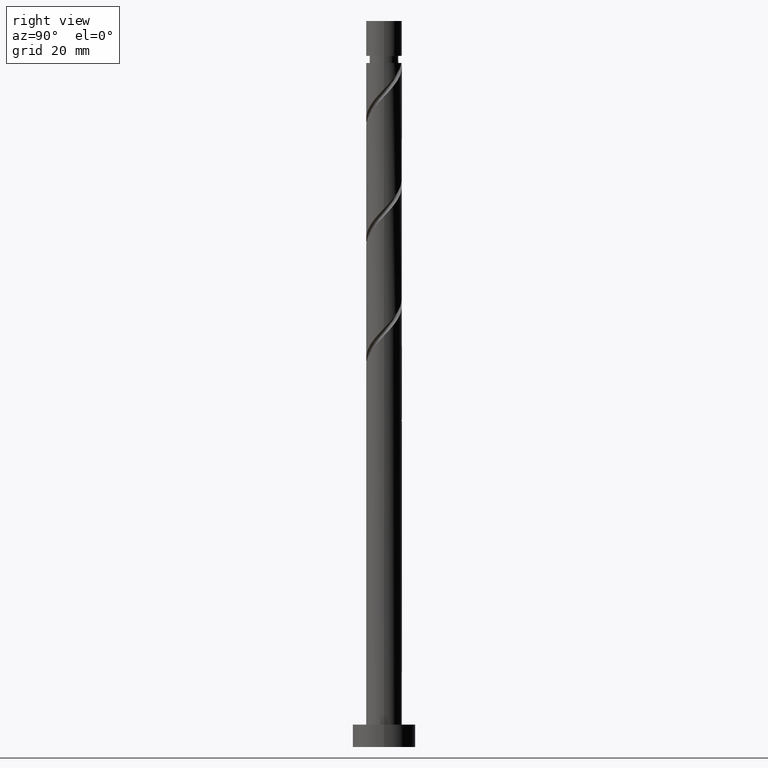
[diagram: clean part render]
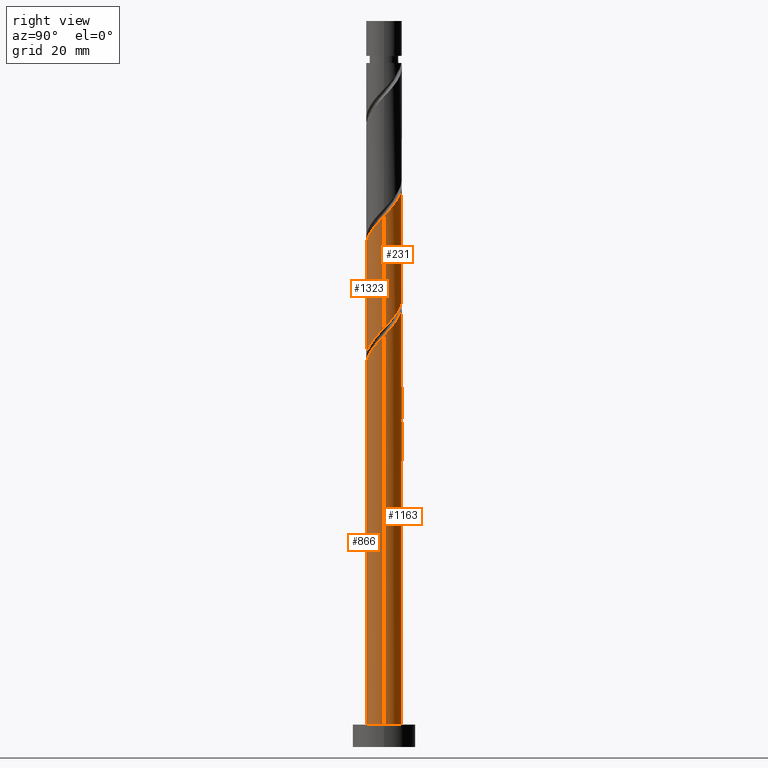
[diagram: same view with one multi-face feature highlighted, each face labeled with its STEP entity id]
A machine part, right view. The highlighted faces form ONE feature: a constant-radius fillet chain: 4 tangent blend faces with common blend radius 4 mm. The faces share edges in the B-rep.
Their STEP definitions:
[1] entity #231 (Cylinder):
#5 = CARTESIAN_POINT ( 'NONE',  ( -0.9136687552802111867, 3.936491403624602814, 101.1082045303811725 ) ) ;
#55 = VERTEX_POINT ( 'NONE', #519 ) ;
#124 = EDGE_CURVE ( 'NONE', #536, #1357, #588, .T. ) ;
#138 = CARTESIAN_POINT ( 'NONE',  ( -3.960310248029102365, 0.8041752946599105556, 105.9566893788660593 ) ) ;
#144 = ORIENTED_EDGE ( 'NONE', *, *, #124, .F. ) ;
#153 = CARTESIAN_POINT ( 'NONE',  ( 0.000000000000000000, 0.000000000000000000, 162.0000000000000000 ) ) ;
#157 = CARTESIAN_POINT ( 'NONE',  ( -4.000000000000000888, 3.769118817281110637E-15, 106.8061438581669051 ) ) ;
#160 = CYLINDRICAL_SURFACE ( 'NONE', #407, 4.000000000000000000 ) ;
#187 = CARTESIAN_POINT ( 'NONE',  ( -4.000000000000005329, 0.4581157095404952972, 131.2879416132605002 ) ) ;
#195 = CARTESIAN_POINT ( 'NONE',  ( -2.376675911072817282, 3.268358422650721629, 127.7748711970478297 ) ) ;
#207 = DIRECTION ( 'NONE',  ( -0.000000000000000000, -0.000000000000000000, -1.000000000000000000 ) ) ;
#231 = ADVANCED_FACE ( 'NONE', ( #1088 ), #160, .T. ) ;
#233 = CARTESIAN_POINT ( 'NONE',  ( -3.573327494404164639, 1.887348876843108147, 104.7445681667448270 ) ) ;
#240 = CARTESIAN_POINT ( 'NONE',  ( -1.449682647155072557, 3.728058505782528620, 101.7142651364417958 ) ) ;
#352 = CARTESIAN_POINT ( 'NONE',  ( 3.766818871216639053, 1.345762085751509574, 119.8960833182599686 ) ) ;
#372 = CARTESIAN_POINT ( 'NONE',  ( 3.960310248029106805, 0.8041752946599101115, 119.2900227121993311 ) ) ;
#377 = CARTESIAN_POINT ( 'NONE',  ( 4.000000000000002665, 0.4581157095404824742, 93.95877047780489022 ) ) ;
#382 = CARTESIAN_POINT ( 'NONE',  ( 3.201206812320808837, 2.466379960577145702, 96.25971968189634254 ) ) ;
#391 = CARTESIAN_POINT ( 'NONE',  ( -3.766818871216632836, 1.345762085751508463, 105.3506287728054076 ) ) ;
#401 = CARTESIAN_POINT ( 'NONE',  ( 2.788941361696811949, 2.867369191613931445, 96.86578028795692319 ) ) ;
#407 = AXIS2_PLACEMENT_3D ( 'NONE', #153, #439, #446 ) ;
#433 = CARTESIAN_POINT ( 'NONE',  ( 0.3406448590276063282, 3.985468740313755642, 124.7445681667448412 ) ) ;
#439 = DIRECTION ( 'NONE',  ( -0.000000000000000000, -0.000000000000000000, -1.000000000000000000 ) ) ;
#446 = DIRECTION ( 'NONE',  ( -1.000000000000000000, 0.000000000000000000, 0.000000000000000000 ) ) ;
#464 = CARTESIAN_POINT ( 'NONE',  ( -4.000000000000005329, -2.752055009443334096E-15, 131.7739015662318138 ) ) ;
#477 = CARTESIAN_POINT ( 'NONE',  ( 4.000000000000005329, 2.557616340297881178E-15, 118.4405682328984568 ) ) ;
#513 = CARTESIAN_POINT ( 'NONE',  ( 3.766394975944543866, 1.464590062224026212, 95.04759846977511017 ) ) ;
#519 = CARTESIAN_POINT ( 'NONE',  ( -4.000000000000005329, -2.752055009443334096E-15, 131.7739015662318138 ) ) ;
#525 = CARTESIAN_POINT ( 'NONE',  ( -3.235091246491823558, 2.352484777181774511, 104.1385075606842037 ) ) ;
#536 = VERTEX_POINT ( 'NONE', #157 ) ;
#588 =( BOUNDED_CURVE ( )  B_SPLINE_CURVE ( 2, ( #1663, #1145, #801, #138, #391, #233, #525, #1282, #1047, #1032, #240, #5, #1653, #1534, #1549, #667, #777, #1423, #401, #382, #1525, #513, #1177, #377, #1038 ),
 .UNSPECIFIED., .F., .T. ) 
 B_SPLINE_CURVE_WITH_KNOTS ( ( 3, 2, 2, 2, 2, 2, 2, 2, 2, 2, 2, 2, 3 ),
 ( 0.6795252162417514397, 0.6818181818181817677, 0.6931818181818182323, 0.7045454545454545858, 0.7159090909090909394, 0.7272727272727272929, 0.7386363636363636465, 0.7500000000000000000, 0.7613636363636363535, 0.7727272727272727071, 0.7840909090909090606, 0.7954545454545454142, 0.8045252162417514397 ),
 .UNSPECIFIED. ) 
 CURVE ( )  GEOMETRIC_REPRESENTATION_ITEM ( )  RATIONAL_B_SPLINE_CURVE ( ( 0.9061101570135570160, 0.9072237824201392353, 0.9090909090909164991, 0.8998376744372188485, 0.9090909090909164991, 0.8998376744372188485, 0.9090909090909164991, 0.8998376744372188485, 0.9090909090909164991, 0.8998376744372188485, 0.9090909090909164991, 0.8998376744372188485, 0.9090909090909164991, 0.8998376744372188485, 0.9090909090909164991, 0.8998376744372188485, 0.9090909090909164991, 0.8998376744372188485, 0.9090909090909164991, 0.8998376744372188485, 0.9090909090909164991, 0.8998376744372188485, 0.9090909090909164991, 0.9017048011079962233, 0.9061101570135570160 ) ) 
 REPRESENTATION_ITEM ( '' )  );
#610 = CARTESIAN_POINT ( 'NONE',  ( -3.483800894132681236, 1.965485011400590398, 129.5930530152296569 ) ) ;
#640 = CARTESIAN_POINT ( 'NONE',  ( 3.993381233129885466, 0.2300137536889530487, 118.6839621061387504 ) ) ;
#667 = CARTESIAN_POINT ( 'NONE',  ( 1.359600862145592615, 3.805553922997103378, 98.68396210613873620 ) ) ;
#734 = CARTESIAN_POINT ( 'NONE',  ( -3.201206812320813277, 2.466379960577148367, 128.9869924091690336 ) ) ;
#740 = CARTESIAN_POINT ( 'NONE',  ( 4.000000000000005329, 2.557616340297881178E-15, 118.4405682328984568 ) ) ;
#742 = LINE ( 'NONE', #1149, #1467 ) ;
#756 = CARTESIAN_POINT ( 'NONE',  ( -3.896423597087605994, 0.9043689247530175557, 130.8051742273508751 ) ) ;
#765 = CARTESIAN_POINT ( 'NONE',  ( 3.573327494404170412, 1.887348876843108370, 120.5021439243205634 ) ) ;
#777 = CARTESIAN_POINT ( 'NONE',  ( 1.868138386609203838, 3.536956172823910727, 98.07790150007816976 ) ) ;
#789 = CARTESIAN_POINT ( 'NONE',  ( -0.7959899496852962386, 3.920000000000005702, 125.9566893788660309 ) ) ;
#801 = CARTESIAN_POINT ( 'NONE',  ( -3.993381233129879693, 0.2300137536889541867, 106.5627499849266542 ) ) ;
#825 = CARTESIAN_POINT ( 'NONE',  ( -1.868138386609205837, 3.536956172823915612, 127.1688105909872490 ) ) ;
#864 = CARTESIAN_POINT ( 'NONE',  ( 4.000000000000005329, 0.1151021060952936159, 118.5626662376166820 ) ) ;
#900 = ORIENTED_EDGE ( 'NONE', *, *, #1110, .T. ) ;
#903 = CARTESIAN_POINT ( 'NONE',  ( 4.000000000000000888, -4.606700776676913527E-15, 93.47281052483359076 ) ) ;
#914 = CARTESIAN_POINT ( 'NONE',  ( 0.9136687552802131851, 3.936491403624606811, 124.1385075606841895 ) ) ;
#1003 = DIRECTION ( 'NONE',  ( -0.000000000000000000, -0.000000000000000000, -1.000000000000000000 ) ) ;
#1023 = EDGE_CURVE ( 'NONE', #55, #536, #1369, .T. ) ;
#1032 = CARTESIAN_POINT ( 'NONE',  ( -1.985696539029934815, 3.519625607940455758, 102.3203257425024191 ) ) ;
#1038 = CARTESIAN_POINT ( 'NONE',  ( 4.000000000000000888, -4.606700776676913527E-15, 93.47281052483359076 ) ) ;
#1047 = CARTESIAN_POINT ( 'NONE',  ( -2.441275768804708868, 3.168623142730448095, 102.9263863485629997 ) ) ;
#1088 = FACE_OUTER_BOUND ( 'NONE', #1454, .T. ) ;
#1095 = VECTOR ( 'NONE', #207, 1000.000000000000000 ) ;
#1110 = EDGE_CURVE ( 'NONE', #1336, #1357, #742, .T. ) ;
#1131 = CARTESIAN_POINT ( 'NONE',  ( 3.235091246491828887, 2.352484777181775399, 121.1082045303812009 ) ) ;
#1145 = CARTESIAN_POINT ( 'NONE',  ( -4.000000000000000000, 0.1151021060952975572, 106.6840458534486942 ) ) ;
#1149 = CARTESIAN_POINT ( 'NONE',  ( 4.000000000000000000, 4.898587196589412829E-16, 162.0000000000000000 ) ) ;
#1152 = CARTESIAN_POINT ( 'NONE',  ( 2.441275768804711976, 3.168623142730452091, 122.3203257425024049 ) ) ;
#1177 = CARTESIAN_POINT ( 'NONE',  ( 3.896423597087600665, 0.9043689247530143360, 94.44153786371452952 ) ) ;
#1221 = CARTESIAN_POINT ( 'NONE',  ( -2.788941361696814614, 2.867369191613936330, 128.3809318031084672 ) ) ;
#1231 = CARTESIAN_POINT ( 'NONE',  ( -3.766394975944548307, 1.464590062224031541, 130.1991136212902518 ) ) ;
#1260 = ORIENTED_EDGE ( 'NONE', *, *, #1638, .F. ) ;
#1282 = CARTESIAN_POINT ( 'NONE',  ( -2.896854998579482920, 2.817620677520439987, 103.5324469546236230 ) ) ;
#1331 = CARTESIAN_POINT ( 'NONE',  ( -1.359600862145593503, 3.805553922997108707, 126.5627499849266400 ) ) ;
#1336 = VERTEX_POINT ( 'NONE', #740 ) ;
#1357 = VERTEX_POINT ( 'NONE', #903 ) ;
#1366 = ORIENTED_EDGE ( 'NONE', *, *, #1023, .F. ) ;
#1369 = LINE ( 'NONE', #1619, #1095 ) ;
#1420 = CARTESIAN_POINT ( 'NONE',  ( -0.2323790372250002234, 4.034446077002900921, 125.3506287728054218 ) ) ;
#1423 = CARTESIAN_POINT ( 'NONE',  ( 2.376675911072815062, 3.268358422650716744, 97.47184089401756069 ) ) ;
#1454 = EDGE_LOOP ( 'NONE', ( #1260, #900, #144, #1366 ) ) ;
#1467 = VECTOR ( 'NONE', #1003, 1000.000000000000000 ) ;
#1525 = CARTESIAN_POINT ( 'NONE',  ( 3.483800894132676351, 1.965485011400587290, 95.65365907583571925 ) ) ;
#1527 = CARTESIAN_POINT ( 'NONE',  ( 1.449682647155074333, 3.728058505782534393, 123.5324469546236230 ) ) ;
#1532 =( BOUNDED_CURVE ( )  B_SPLINE_CURVE ( 2, ( #477, #864, #640, #372, #352, #765, #1131, #1632, #1152, #1657, #1527, #914, #433, #1420, #789, #1331, #825, #195, #1221, #734, #610, #1231, #756, #187, #464 ),
 .UNSPECIFIED., .F., .T. ) 
 B_SPLINE_CURVE_WITH_KNOTS ( ( 3, 2, 2, 2, 2, 2, 2, 2, 2, 2, 2, 2, 3 ),
 ( 0.4295252162417513841, 0.4318181818181817677, 0.4431818181818182323, 0.4545454545454545858, 0.4659090909090909394, 0.4772727272727272929, 0.4886363636363636465, 0.5000000000000000000, 0.5113636363636363535, 0.5227272727272727071, 0.5340909090909091717, 0.5454545454545454142, 0.5545252162417513286 ),
 .UNSPECIFIED. ) 
 CURVE ( )  GEOMETRIC_REPRESENTATION_ITEM ( )  RATIONAL_B_SPLINE_CURVE ( ( 0.9061101570135623451, 0.9072237824201445644, 0.9090909090909219392, 0.8998376744372241776, 0.9090909090909219392, 0.8998376744372241776, 0.9090909090909219392, 0.8998376744372241776, 0.9090909090909219392, 0.8998376744372241776, 0.9090909090909219392, 0.8998376744372241776, 0.9090909090909219392, 0.8998376744372241776, 0.9090909090909219392, 0.8998376744372241776, 0.9090909090909219392, 0.8998376744372241776, 0.9090909090909219392, 0.8998376744372241776, 0.9090909090909219392, 0.8998376744372241776, 0.9090909090909219392, 0.9017048011080017744, 0.9061101570135622341 ) ) 
 REPRESENTATION_ITEM ( '' )  );
#1534 = CARTESIAN_POINT ( 'NONE',  ( 0.2323790372250010838, 4.034446077002895592, 99.89608331825995435 ) ) ;
#1549 = CARTESIAN_POINT ( 'NONE',  ( 0.7959899496852975709, 3.919999999999999929, 99.29002271219934528 ) ) ;
#1619 = CARTESIAN_POINT ( 'NONE',  ( -4.000000000000000000, 0.000000000000000000, 162.0000000000000000 ) ) ;
#1632 = CARTESIAN_POINT ( 'NONE',  ( 2.896854998579489138, 2.817620677520440875, 121.7142651364417816 ) ) ;
#1638 = EDGE_CURVE ( 'NONE', #1336, #55, #1532, .T. ) ;
#1653 = CARTESIAN_POINT ( 'NONE',  ( -0.3406448590276049404, 3.985468740313750313, 100.5021439243205492 ) ) ;
#1657 = CARTESIAN_POINT ( 'NONE',  ( 1.985696539029936369, 3.519625607940460643, 122.9263863485630139 ) ) ;
#1663 = CARTESIAN_POINT ( 'NONE',  ( -4.000000000000000888, 3.769118817281110637E-15, 106.8061438581668909 ) ) ;
[2] entity #1323 (Cylinder):
#6 = CARTESIAN_POINT ( 'NONE',  ( -2.376675911072814618, -3.268358422650716744, 84.13850756068420367 ) ) ;
#8 = VERTEX_POINT ( 'NONE', #98 ) ;
#13 = CARTESIAN_POINT ( 'NONE',  ( 1.868138386609204726, -3.536956172823916056, 113.8354772576539204 ) ) ;
#23 = CARTESIAN_POINT ( 'NONE',  ( -3.766394975944543422, -1.464590062224028433, 81.71426513644179579 ) ) ;
#29 = LINE ( 'NONE', #1197, #1196 ) ;
#37 = EDGE_CURVE ( 'NONE', #1378, #1336, #530, .T. ) ;
#44 = CARTESIAN_POINT ( 'NONE',  ( -3.896423597087600665, -0.9043689247530153352, 81.10820453038115829 ) ) ;
#89 = CARTESIAN_POINT ( 'NONE',  ( 1.985696539029934149, -3.519625607940456202, 88.98699240916909048 ) ) ;
#98 = CARTESIAN_POINT ( 'NONE',  ( -4.000000000000000888, 3.769118817281110637E-15, 80.13947719150026217 ) ) ;
#191 = CARTESIAN_POINT ( 'NONE',  ( 2.441275768804707980, -3.168623142730448095, 89.59305301522967113 ) ) ;
#217 = DIRECTION ( 'NONE',  ( -1.000000000000000000, 0.000000000000000000, 0.000000000000000000 ) ) ;
#357 = CARTESIAN_POINT ( 'NONE',  ( 0.2323790372250007230, -4.034446077002900921, 112.0172954394720648 ) ) ;
#368 = CARTESIAN_POINT ( 'NONE',  ( -1.359600862145591949, -3.805553922997103822, 85.35062877280540761 ) ) ;
#402 = CARTESIAN_POINT ( 'NONE',  ( -4.000000000000001776, -0.4581157095404894686, 80.62543714447157583 ) ) ;
#450 = CARTESIAN_POINT ( 'NONE',  ( 3.993381233129879693, -0.2300137536889547418, 93.22941665159331137 ) ) ;
#468 = EDGE_LOOP ( 'NONE', ( #1603, #1173, #1263, #1167 ) ) ;
#478 = CARTESIAN_POINT ( 'NONE',  ( -3.573327494404169524, -1.887348876843109702, 107.1688105909872348 ) ) ;
#491 = CARTESIAN_POINT ( 'NONE',  ( 0.000000000000000000, 0.000000000000000000, 162.0000000000000000 ) ) ;
#494 = FACE_OUTER_BOUND ( 'NONE', #468, .T. ) ;
#501 = CYLINDRICAL_SURFACE ( 'NONE', #1072, 4.000000000000000000 ) ;
#507 = CARTESIAN_POINT ( 'NONE',  ( -3.993381233129885466, -0.2300137536889534373, 105.3506287728054218 ) ) ;
#508 = CARTESIAN_POINT ( 'NONE',  ( -0.2323790372250022218, -4.034446077002896480, 86.56274998492665418 ) ) ;
#530 =( BOUNDED_CURVE ( )  B_SPLINE_CURVE ( 2, ( #1344, #1126, #507, #1503, #1224, #478, #981, #850, #991, #1137, #1011, #1510, #873, #357, #1518, #719, #13, #1159, #1165, #924, #792, #1289, #1027, #1267, #1396 ),
 .UNSPECIFIED., .F., .T. ) 
 B_SPLINE_CURVE_WITH_KNOTS ( ( 3, 2, 2, 2, 2, 2, 2, 2, 2, 2, 2, 2, 3 ),
 ( 0.3045252162417513841, 0.3068181818181817677, 0.3181818181818182323, 0.3295454545454545858, 0.3409090909090909394, 0.3522727272727272929, 0.3636363636363636465, 0.3750000000000000000, 0.3863636363636363535, 0.3977272727272727071, 0.4090909090909090606, 0.4204545454545454142, 0.4295252162417513841 ),
 .UNSPECIFIED. ) 
 CURVE ( )  GEOMETRIC_REPRESENTATION_ITEM ( )  RATIONAL_B_SPLINE_CURVE ( ( 0.9061101570135623451, 0.9072237824201445644, 0.9090909090909219392, 0.8998376744372241776, 0.9090909090909219392, 0.8998376744372241776, 0.9090909090909219392, 0.8998376744372241776, 0.9090909090909219392, 0.8998376744372241776, 0.9090909090909219392, 0.8998376744372241776, 0.9090909090909219392, 0.8998376744372241776, 0.9090909090909219392, 0.8998376744372241776, 0.9090909090909219392, 0.8998376744372241776, 0.9090909090909219392, 0.8998376744372241776, 0.9090909090909219392, 0.8998376744372241776, 0.9090909090909219392, 0.9017048011080015524, 0.9061101570135623451 ) ) 
 REPRESENTATION_ITEM ( '' )  );
#571 = EDGE_CURVE ( 'NONE', #1378, #8, #29, .T. ) ;
#580 = CARTESIAN_POINT ( 'NONE',  ( 4.000000000000000888, -4.606700776676913527E-15, 93.47281052483359076 ) ) ;
#711 = CARTESIAN_POINT ( 'NONE',  ( 3.573327494404164639, -1.887348876843107703, 91.41123483341148415 ) ) ;
#719 = CARTESIAN_POINT ( 'NONE',  ( 1.359600862145592615, -3.805553922997109595, 113.2294166515932972 ) ) ;
#740 = CARTESIAN_POINT ( 'NONE',  ( 4.000000000000005329, 2.557616340297881178E-15, 118.4405682328984568 ) ) ;
#742 = LINE ( 'NONE', #1149, #1467 ) ;
#792 = CARTESIAN_POINT ( 'NONE',  ( 3.483800894132681236, -1.965485011400590842, 116.2597196818963283 ) ) ;
#817 = CARTESIAN_POINT ( 'NONE',  ( -2.788941361696812393, -2.867369191613931001, 83.53244695462356617 ) ) ;
#850 = CARTESIAN_POINT ( 'NONE',  ( -2.896854998579486917, -2.817620677520442651, 108.3809318031084388 ) ) ;
#873 = CARTESIAN_POINT ( 'NONE',  ( -0.3406448590276058841, -3.985468740313755642, 111.4112348334114841 ) ) ;
#886 = CARTESIAN_POINT ( 'NONE',  ( 0.3406448590276037192, -3.985468740313750313, 87.16881059098724904 ) ) ;
#903 = CARTESIAN_POINT ( 'NONE',  ( 4.000000000000000888, -4.606700776676913527E-15, 93.47281052483359076 ) ) ;
#924 = CARTESIAN_POINT ( 'NONE',  ( 3.201206812320812833, -2.466379960577149699, 115.6536590758357335 ) ) ;
#962 = CARTESIAN_POINT ( 'NONE',  ( 3.960310248029102365, -0.8041752946599112217, 92.62335604553268809 ) ) ;
#981 = CARTESIAN_POINT ( 'NONE',  ( -3.235091246491827999, -2.352484777181776288, 107.7748711970478723 ) ) ;
#991 = CARTESIAN_POINT ( 'NONE',  ( -2.441275768804712420, -3.168623142730450759, 108.9869924091690478 ) ) ;
#1003 = DIRECTION ( 'NONE',  ( -0.000000000000000000, -0.000000000000000000, -1.000000000000000000 ) ) ;
#1011 = CARTESIAN_POINT ( 'NONE',  ( -1.449682647155075665, -3.728058505782533505, 110.1991136212902660 ) ) ;
#1027 = CARTESIAN_POINT ( 'NONE',  ( 3.896423597087605994, -0.9043689247530174447, 117.4718408940175465 ) ) ;
#1039 = EDGE_CURVE ( 'NONE', #1357, #8, #1170, .T. ) ;
#1072 = AXIS2_PLACEMENT_3D ( 'NONE', #491, #1647, #217 ) ;
#1085 = CARTESIAN_POINT ( 'NONE',  ( -4.000000000000005329, -2.752055009443334096E-15, 105.1072348995651424 ) ) ;
#1110 = EDGE_CURVE ( 'NONE', #1336, #1357, #742, .T. ) ;
#1126 = CARTESIAN_POINT ( 'NONE',  ( -4.000000000000005329, -0.1151021060952939212, 105.2293329042833534 ) ) ;
#1137 = CARTESIAN_POINT ( 'NONE',  ( -1.985696539029938146, -3.519625607940459311, 109.5930530152296569 ) ) ;
#1149 = CARTESIAN_POINT ( 'NONE',  ( 4.000000000000000000, 4.898587196589412829E-16, 162.0000000000000000 ) ) ;
#1159 = CARTESIAN_POINT ( 'NONE',  ( 2.376675911072817282, -3.268358422650720740, 114.4415378637145437 ) ) ;
#1165 = CARTESIAN_POINT ( 'NONE',  ( 2.788941361696814614, -2.867369191613936330, 115.0475984697751386 ) ) ;
#1167 = ORIENTED_EDGE ( 'NONE', *, *, #1039, .F. ) ;
#1170 =( BOUNDED_CURVE ( )  B_SPLINE_CURVE ( 2, ( #580, #1597, #450, #962, #1338, #711, #1347, #1605, #191, #89, #1403, #1646, #886, #508, #1519, #368, #1450, #6, #817, #1178, #1311, #23, #44, #402, #1297 ),
 .UNSPECIFIED., .F., .T. ) 
 B_SPLINE_CURVE_WITH_KNOTS ( ( 3, 2, 2, 2, 2, 2, 2, 2, 2, 2, 2, 2, 3 ),
 ( 0.8045252162417514397, 0.8068181818181817677, 0.8181818181818182323, 0.8295454545454545858, 0.8409090909090909394, 0.8522727272727272929, 0.8636363636363636465, 0.8750000000000000000, 0.8863636363636363535, 0.8977272727272727071, 0.9090909090909090606, 0.9204545454545454142, 0.9295252162417513286 ),
 .UNSPECIFIED. ) 
 CURVE ( )  GEOMETRIC_REPRESENTATION_ITEM ( )  RATIONAL_B_SPLINE_CURVE ( ( 0.9061101570135570160, 0.9072237824201392353, 0.9090909090909164991, 0.8998376744372188485, 0.9090909090909164991, 0.8998376744372188485, 0.9090909090909164991, 0.8998376744372188485, 0.9090909090909164991, 0.8998376744372188485, 0.9090909090909164991, 0.8998376744372188485, 0.9090909090909164991, 0.8998376744372188485, 0.9090909090909164991, 0.8998376744372188485, 0.9090909090909164991, 0.8998376744372188485, 0.9090909090909164991, 0.8998376744372188485, 0.9090909090909164991, 0.8998376744372188485, 0.9090909090909164991, 0.9017048011079962233, 0.9061101570135567940 ) ) 
 REPRESENTATION_ITEM ( '' )  );
#1173 = ORIENTED_EDGE ( 'NONE', *, *, #37, .F. ) ;
#1178 = CARTESIAN_POINT ( 'NONE',  ( -3.201206812320810169, -2.466379960577145702, 82.92638634856298552 ) ) ;
#1196 = VECTOR ( 'NONE', #1445, 1000.000000000000000 ) ;
#1197 = CARTESIAN_POINT ( 'NONE',  ( -4.000000000000000000, 0.000000000000000000, 162.0000000000000000 ) ) ;
#1224 = CARTESIAN_POINT ( 'NONE',  ( -3.766818871216639053, -1.345762085751509796, 106.5627499849266684 ) ) ;
#1263 = ORIENTED_EDGE ( 'NONE', *, *, #571, .T. ) ;
#1267 = CARTESIAN_POINT ( 'NONE',  ( 4.000000000000007994, -0.4581157095404881918, 117.9546082799271858 ) ) ;
#1289 = CARTESIAN_POINT ( 'NONE',  ( 3.766394975944548751, -1.464590062224029987, 116.8657802879569516 ) ) ;
#1297 = CARTESIAN_POINT ( 'NONE',  ( -4.000000000000000888, 3.769118817281110637E-15, 80.13947719150026217 ) ) ;
#1311 = CARTESIAN_POINT ( 'NONE',  ( -3.483800894132676351, -1.965485011400587068, 82.32032574250239065 ) ) ;
#1323 = ADVANCED_FACE ( 'NONE', ( #494 ), #501, .T. ) ;
#1336 = VERTEX_POINT ( 'NONE', #740 ) ;
#1338 = CARTESIAN_POINT ( 'NONE',  ( 3.766818871216632836, -1.345762085751509129, 92.01729543947207901 ) ) ;
#1344 = CARTESIAN_POINT ( 'NONE',  ( -4.000000000000005329, -2.752055009443334096E-15, 105.1072348995651424 ) ) ;
#1347 = CARTESIAN_POINT ( 'NONE',  ( 3.235091246491824002, -2.352484777181773179, 90.80517422735083244 ) ) ;
#1357 = VERTEX_POINT ( 'NONE', #903 ) ;
#1378 = VERTEX_POINT ( 'NONE', #1085 ) ;
#1396 = CARTESIAN_POINT ( 'NONE',  ( 4.000000000000005329, 2.557616340297881178E-15, 118.4405682328984568 ) ) ;
#1403 = CARTESIAN_POINT ( 'NONE',  ( 1.449682647155072557, -3.728058505782528620, 88.38093180310846719 ) ) ;
#1445 = DIRECTION ( 'NONE',  ( -0.000000000000000000, -0.000000000000000000, -1.000000000000000000 ) ) ;
#1450 = CARTESIAN_POINT ( 'NONE',  ( -1.868138386609203616, -3.536956172823910727, 84.74456816674485538 ) ) ;
#1467 = VECTOR ( 'NONE', #1003, 1000.000000000000000 ) ;
#1503 = CARTESIAN_POINT ( 'NONE',  ( -3.960310248029106805, -0.8041752946599106666, 105.9566893788660167 ) ) ;
#1510 = CARTESIAN_POINT ( 'NONE',  ( -0.9136687552802127410, -3.936491403624608143, 110.8051742273508751 ) ) ;
#1518 = CARTESIAN_POINT ( 'NONE',  ( 0.7959899496852965717, -3.920000000000005702, 112.6233560455326881 ) ) ;
#1519 = CARTESIAN_POINT ( 'NONE',  ( -0.7959899496852971268, -3.919999999999999929, 85.95668937886603089 ) ) ;
#1597 = CARTESIAN_POINT ( 'NONE',  ( 4.000000000000000000, -0.1151021060952983205, 93.35071252011537979 ) ) ;
#1603 = ORIENTED_EDGE ( 'NONE', *, *, #1110, .F. ) ;
#1605 = CARTESIAN_POINT ( 'NONE',  ( 2.896854998579484253, -2.817620677520439987, 90.19911362129029442 ) ) ;
#1646 = CARTESIAN_POINT ( 'NONE',  ( 0.9136687552802118528, -3.936491403624601926, 87.77487119704787233 ) ) ;
#1647 = DIRECTION ( 'NONE',  ( -0.000000000000000000, -0.000000000000000000, -1.000000000000000000 ) ) ;
[3] entity #1163 (Cylinder):
#8 = VERTEX_POINT ( 'NONE', #98 ) ;
#11 = CARTESIAN_POINT ( 'NONE',  ( -4.000000000000000888, 3.769118817281110637E-15, 80.13947719150026217 ) ) ;
#20 = CARTESIAN_POINT ( 'NONE',  ( -4.000000000000000888, 0.1151021060952919922, 80.01737918678205119 ) ) ;
#29 = LINE ( 'NONE', #1197, #1196 ) ;
#66 = CARTESIAN_POINT ( 'NONE',  ( 3.573327494404170412, 1.887348876843108370, 93.83547725765392045 ) ) ;
#76 = CARTESIAN_POINT ( 'NONE',  ( 0.000000000000000000, 0.000000000000000000, 72.62335604553271651 ) ) ;
#92 = DIRECTION ( 'NONE',  ( -1.000000000000000000, 0.000000000000000000, 0.000000000000000000 ) ) ;
#98 = CARTESIAN_POINT ( 'NONE',  ( -4.000000000000000888, 3.769118817281110637E-15, 80.13947719150026217 ) ) ;
#125 = DIRECTION ( 'NONE',  ( 1.000000000000000000, 0.000000000000000000, 0.000000000000000000 ) ) ;
#147 = LINE ( 'NONE', #1303, #1478 ) ;
#189 = CARTESIAN_POINT ( 'NONE',  ( -0.7959899496852962386, 3.920000000000005702, 99.29002271219934528 ) ) ;
#190 = CIRCLE ( 'NONE', #1443, 4.000000000000000000 ) ;
#234 = VERTEX_POINT ( 'NONE', #561 ) ;
#251 = CARTESIAN_POINT ( 'NONE',  ( 3.993381233129885466, 0.2300137536889530487, 92.01729543947209322 ) ) ;
#259 = CARTESIAN_POINT ( 'NONE',  ( -1.985696539029934815, 3.519625607940455758, 75.65365907583573346 ) ) ;
#281 =( BOUNDED_CURVE ( )  B_SPLINE_CURVE ( 2, ( #1501, #1233, #1223, #1614, #594, #1485, #1103, #1611, #456, #1384, #465 ),
 .UNSPECIFIED., .F., .T. ) 
 B_SPLINE_CURVE_WITH_KNOTS ( ( 3, 2, 2, 2, 2, 3 ),
 ( 0.000000000000000000, 0.01136363636363635354, 0.02272727272727270709, 0.03409090909090906063, 0.04545454545454541417, 0.05452521624175127313 ),
 .UNSPECIFIED. ) 
 CURVE ( )  GEOMETRIC_REPRESENTATION_ITEM ( )  RATIONAL_B_SPLINE_CURVE ( ( 0.9090909090909219392, 0.8998376744372241776, 0.9090909090909219392, 0.8998376744372241776, 0.9090909090909219392, 0.8998376744372241776, 0.9090909090909219392, 0.8998376744372241776, 0.9090909090909219392, 0.9017048011080016634, 0.9061101570135622341 ) ) 
 REPRESENTATION_ITEM ( '' )  );
#294 = EDGE_CURVE ( 'NONE', #234, #436, #147, .T. ) ;
#296 = CARTESIAN_POINT ( 'NONE',  ( 0.3406448590276063282, 3.985468740313755642, 98.07790150007818397 ) ) ;
#302 = CIRCLE ( 'NONE', #360, 4.000000000000000000 ) ;
#305 = CARTESIAN_POINT ( 'NONE',  ( -0.2323790372250002234, 4.034446077002900921, 98.68396210613873620 ) ) ;
#318 = CARTESIAN_POINT ( 'NONE',  ( -4.000000000000000000, 0.000000000000000000, 5.000000000000000000 ) ) ;
#339 = CARTESIAN_POINT ( 'NONE',  ( -3.896423597087605994, 0.9043689247530175557, 104.1385075606842321 ) ) ;
#350 = VERTEX_POINT ( 'NONE', #1184 ) ;
#360 = AXIS2_PLACEMENT_3D ( 'NONE', #1009, #1387, #125 ) ;
#408 = ORIENTED_EDGE ( 'NONE', *, *, #500, .F. ) ;
#422 = CARTESIAN_POINT ( 'NONE',  ( 0.7959899496852974599, 3.919999999999999929, 72.62335604553270230 ) ) ;
#436 = VERTEX_POINT ( 'NONE', #318 ) ;
#443 = CARTESIAN_POINT ( 'NONE',  ( -1.868138386609205837, 3.536956172823915612, 100.5021439243205919 ) ) ;
#456 = CARTESIAN_POINT ( 'NONE',  ( -3.896423597087605994, 0.9043689247530175557, 77.47184089401754647 ) ) ;
#459 = CARTESIAN_POINT ( 'NONE',  ( 2.441275768804711976, 3.168623142730452091, 95.65365907583571925 ) ) ;
#465 = CARTESIAN_POINT ( 'NONE',  ( -4.000000000000005329, -2.752055009443334096E-15, 78.44056823289847102 ) ) ;
#470 = CARTESIAN_POINT ( 'NONE',  ( -1.359600862145593503, 3.805553922997108707, 99.89608331825996856 ) ) ;
#479 = CARTESIAN_POINT ( 'NONE',  ( -3.766394975944548307, 1.464590062224031541, 103.5324469546235946 ) ) ;
#498 = ORIENTED_EDGE ( 'NONE', *, *, #1274, .T. ) ;
#500 = EDGE_CURVE ( 'NONE', #1090, #234, #281, .T. ) ;
#506 = CARTESIAN_POINT ( 'NONE',  ( -3.993381233129879693, 0.2300137536889541867, 79.89608331825998278 ) ) ;
#548 = ORIENTED_EDGE ( 'NONE', *, *, #1204, .T. ) ;
#561 = CARTESIAN_POINT ( 'NONE',  ( -4.000000000000005329, -2.752055009443334096E-15, 78.44056823289847102 ) ) ;
#563 = CARTESIAN_POINT ( 'NONE',  ( 0.9136687552802131851, 3.936491403624606811, 97.47184089401756069 ) ) ;
#571 = EDGE_CURVE ( 'NONE', #1378, #8, #29, .T. ) ;
#574 = CARTESIAN_POINT ( 'NONE',  ( 3.766818871216639053, 1.345762085751509574, 93.22941665159331137 ) ) ;
#594 = CARTESIAN_POINT ( 'NONE',  ( -2.788941361696814614, 2.867369191613936330, 75.04759846977512439 ) ) ;
#645 = CARTESIAN_POINT ( 'NONE',  ( -3.573327494404164639, 1.887348876843108147, 78.07790150007815555 ) ) ;
#655 = ORIENTED_EDGE ( 'NONE', *, *, #294, .F. ) ;
#660 = CARTESIAN_POINT ( 'NONE',  ( -3.960310248029102365, 0.8041752946599105556, 79.29002271219937370 ) ) ;
#668 = EDGE_CURVE ( 'NONE', #1090, #1566, #190, .T. ) ;
#671 = ORIENTED_EDGE ( 'NONE', *, *, #1607, .F. ) ;
#695 = CARTESIAN_POINT ( 'NONE',  ( -2.376675911072817282, 3.268358422650721629, 101.1082045303811867 ) ) ;
#699 = CARTESIAN_POINT ( 'NONE',  ( -0.9136687552802111867, 3.936491403624602814, 74.44153786371451531 ) ) ;
#810 = CARTESIAN_POINT ( 'NONE',  ( -0.7959899496852960166, 3.920000000000004370, 72.62335604553270230 ) ) ;
#828 = ORIENTED_EDGE ( 'NONE', *, *, #571, .F. ) ;
#829 = VECTOR ( 'NONE', #987, 1000.000000000000000 ) ;
#831 = CARTESIAN_POINT ( 'NONE',  ( -1.449682647155072557, 3.728058505782528620, 75.04759846977511017 ) ) ;
#849 = CARTESIAN_POINT ( 'NONE',  ( 4.000000000000000000, 4.898587196589412829E-16, 162.0000000000000000 ) ) ;
#852 = CARTESIAN_POINT ( 'NONE',  ( 1.985696539029936369, 3.519625607940460643, 96.25971968189635675 ) ) ;
#865 = DIRECTION ( 'NONE',  ( -1.000000000000000000, 0.000000000000000000, 0.000000000000000000 ) ) ;
#885 = CYLINDRICAL_SURFACE ( 'NONE', #904, 4.000000000000000000 ) ;
#888 =( BOUNDED_CURVE ( )  B_SPLINE_CURVE ( 2, ( #11, #20, #506, #660, #1412, #645, #1281, #1026, #1541, #259, #831, #699, #939, #1318, #1456 ),
 .UNSPECIFIED., .F., .T. ) 
 B_SPLINE_CURVE_WITH_KNOTS ( ( 3, 2, 2, 2, 2, 2, 2, 3 ),
 ( 0.9295252162417513286, 0.9318181818181817677, 0.9431818181818182323, 0.9545454545454545858, 0.9659090909090909394, 0.9772727272727272929, 0.9886363636363636465, 1.000000000000000000 ),
 .UNSPECIFIED. ) 
 CURVE ( )  GEOMETRIC_REPRESENTATION_ITEM ( )  RATIONAL_B_SPLINE_CURVE ( ( 0.9061101570135567940, 0.9072237824201390133, 0.9090909090909164991, 0.8998376744372188485, 0.9090909090909164991, 0.8998376744372188485, 0.9090909090909164991, 0.8998376744372188485, 0.9090909090909164991, 0.8998376744372188485, 0.9090909090909164991, 0.8998376744372188485, 0.9090909090909164991, 0.8998376744372188485, 0.9090909090909164991 ) ) 
 REPRESENTATION_ITEM ( '' )  );
#898 = DIRECTION ( 'NONE',  ( -0.000000000000000000, -0.000000000000000000, -1.000000000000000000 ) ) ;
#904 = AXIS2_PLACEMENT_3D ( 'NONE', #1526, #898, #865 ) ;
#939 = CARTESIAN_POINT ( 'NONE',  ( -0.3406448590276049404, 3.985468740313750313, 73.83547725765390624 ) ) ;
#953 = DIRECTION ( 'NONE',  ( -0.000000000000000000, -0.000000000000000000, -1.000000000000000000 ) ) ;
#973 = CARTESIAN_POINT ( 'NONE',  ( 2.896854998579489138, 2.817620677520440875, 95.04759846977512439 ) ) ;
#987 = DIRECTION ( 'NONE',  ( -0.000000000000000000, -0.000000000000000000, -1.000000000000000000 ) ) ;
#1009 = CARTESIAN_POINT ( 'NONE',  ( 0.000000000000000000, 0.000000000000000000, 5.000000000000000000 ) ) ;
#1026 = CARTESIAN_POINT ( 'NONE',  ( -2.896854998579482920, 2.817620677520439987, 76.86578028795693740 ) ) ;
#1056 = LINE ( 'NONE', #849, #829 ) ;
#1061 = CARTESIAN_POINT ( 'NONE',  ( 3.960310248029106805, 0.8041752946599101115, 92.62335604553267387 ) ) ;
#1084 = CARTESIAN_POINT ( 'NONE',  ( -2.788941361696814614, 2.867369191613936330, 101.7142651364417674 ) ) ;
#1085 = CARTESIAN_POINT ( 'NONE',  ( -4.000000000000005329, -2.752055009443334096E-15, 105.1072348995651424 ) ) ;
#1090 = VERTEX_POINT ( 'NONE', #810 ) ;
#1103 = CARTESIAN_POINT ( 'NONE',  ( -3.483800894132681236, 1.965485011400590398, 76.25971968189631411 ) ) ;
#1104 = ORIENTED_EDGE ( 'NONE', *, *, #1138, .F. ) ;
#1120 = CARTESIAN_POINT ( 'NONE',  ( -4.000000000000007994, 0.4581157095404883028, 104.6212749465938714 ) ) ;
#1128 = CARTESIAN_POINT ( 'NONE',  ( -3.483800894132681236, 1.965485011400590398, 102.9263863485629997 ) ) ;
#1130 = CARTESIAN_POINT ( 'NONE',  ( 4.000000000000005329, 2.557616340297881178E-15, 91.77390156623179962 ) ) ;
#1138 = EDGE_CURVE ( 'NONE', #350, #1378, #1330, .T. ) ;
#1147 = FACE_OUTER_BOUND ( 'NONE', #1190, .T. ) ;
#1163 = ADVANCED_FACE ( 'NONE', ( #1147 ), #885, .T. ) ;
#1180 = ORIENTED_EDGE ( 'NONE', *, *, #668, .T. ) ;
#1184 = CARTESIAN_POINT ( 'NONE',  ( 4.000000000000005329, 2.557616340297881178E-15, 91.77390156623179962 ) ) ;
#1190 = EDGE_LOOP ( 'NONE', ( #1104, #548, #498, #655, #408, #1180, #671, #828 ) ) ;
#1196 = VECTOR ( 'NONE', #1445, 1000.000000000000000 ) ;
#1197 = CARTESIAN_POINT ( 'NONE',  ( -4.000000000000000000, 0.000000000000000000, 162.0000000000000000 ) ) ;
#1204 = EDGE_CURVE ( 'NONE', #350, #1439, #1056, .T. ) ;
#1223 = CARTESIAN_POINT ( 'NONE',  ( -1.868138386609205837, 3.536956172823915612, 73.83547725765394887 ) ) ;
#1233 = CARTESIAN_POINT ( 'NONE',  ( -1.359600862145593503, 3.805553922997108707, 73.22941665159329716 ) ) ;
#1274 = EDGE_CURVE ( 'NONE', #1439, #436, #302, .T. ) ;
#1281 = CARTESIAN_POINT ( 'NONE',  ( -3.235091246491823558, 2.352484777181774511, 77.47184089401754647 ) ) ;
#1295 = CARTESIAN_POINT ( 'NONE',  ( 4.000000000000000000, 4.898587196589412829E-16, 5.000000000000000000 ) ) ;
#1303 = CARTESIAN_POINT ( 'NONE',  ( -4.000000000000000000, 0.000000000000000000, 162.0000000000000000 ) ) ;
#1318 = CARTESIAN_POINT ( 'NONE',  ( 0.2323790372250010838, 4.034446077002895592, 73.22941665159331137 ) ) ;
#1330 =( BOUNDED_CURVE ( )  B_SPLINE_CURVE ( 2, ( #1130, #1640, #251, #1061, #574, #66, #1360, #973, #459, #852, #1346, #563, #296, #305, #189, #470, #443, #695, #1084, #1588, #1128, #479, #339, #1120, #1639 ),
 .UNSPECIFIED., .F., .T. ) 
 B_SPLINE_CURVE_WITH_KNOTS ( ( 3, 2, 2, 2, 2, 2, 2, 2, 2, 2, 2, 2, 3 ),
 ( 0.1795252162417513841, 0.1818181818181817677, 0.1931818181818182323, 0.2045454545454545858, 0.2159090909090909394, 0.2272727272727272929, 0.2386363636363636465, 0.2500000000000000000, 0.2613636363636363535, 0.2727272727272727071, 0.2840909090909090606, 0.2954545454545454142, 0.3045252162417513841 ),
 .UNSPECIFIED. ) 
 CURVE ( )  GEOMETRIC_REPRESENTATION_ITEM ( )  RATIONAL_B_SPLINE_CURVE ( ( 0.9061101570135623451, 0.9072237824201445644, 0.9090909090909219392, 0.8998376744372241776, 0.9090909090909219392, 0.8998376744372241776, 0.9090909090909219392, 0.8998376744372241776, 0.9090909090909219392, 0.8998376744372241776, 0.9090909090909219392, 0.8998376744372241776, 0.9090909090909219392, 0.8998376744372241776, 0.9090909090909219392, 0.8998376744372241776, 0.9090909090909219392, 0.8998376744372241776, 0.9090909090909219392, 0.8998376744372241776, 0.9090909090909219392, 0.8998376744372241776, 0.9090909090909219392, 0.9017048011080015524, 0.9061101570135623451 ) ) 
 REPRESENTATION_ITEM ( '' )  );
#1346 = CARTESIAN_POINT ( 'NONE',  ( 1.449682647155074333, 3.728058505782534393, 96.86578028795695161 ) ) ;
#1360 = CARTESIAN_POINT ( 'NONE',  ( 3.235091246491828887, 2.352484777181775399, 94.44153786371452952 ) ) ;
#1378 = VERTEX_POINT ( 'NONE', #1085 ) ;
#1384 = CARTESIAN_POINT ( 'NONE',  ( -4.000000000000006217, 0.4581157095404937984, 77.95460827992718578 ) ) ;
#1387 = DIRECTION ( 'NONE',  ( 0.000000000000000000, 0.000000000000000000, 1.000000000000000000 ) ) ;
#1412 = CARTESIAN_POINT ( 'NONE',  ( -3.766818871216632836, 1.345762085751508463, 78.68396210613876463 ) ) ;
#1439 = VERTEX_POINT ( 'NONE', #1295 ) ;
#1443 = AXIS2_PLACEMENT_3D ( 'NONE', #76, #1621, #92 ) ;
#1445 = DIRECTION ( 'NONE',  ( -0.000000000000000000, -0.000000000000000000, -1.000000000000000000 ) ) ;
#1456 = CARTESIAN_POINT ( 'NONE',  ( 0.7959899496852974599, 3.919999999999999929, 72.62335604553270230 ) ) ;
#1478 = VECTOR ( 'NONE', #953, 1000.000000000000000 ) ;
#1485 = CARTESIAN_POINT ( 'NONE',  ( -3.201206812320813277, 2.466379960577148367, 75.65365907583573346 ) ) ;
#1501 = CARTESIAN_POINT ( 'NONE',  ( -0.7959899496852960166, 3.920000000000004370, 72.62335604553268809 ) ) ;
#1526 = CARTESIAN_POINT ( 'NONE',  ( 0.000000000000000000, 0.000000000000000000, 162.0000000000000000 ) ) ;
#1541 = CARTESIAN_POINT ( 'NONE',  ( -2.441275768804708868, 3.168623142730448095, 76.25971968189634254 ) ) ;
#1566 = VERTEX_POINT ( 'NONE', #422 ) ;
#1588 = CARTESIAN_POINT ( 'NONE',  ( -3.201206812320813277, 2.466379960577148367, 102.3203257425023907 ) ) ;
#1607 = EDGE_CURVE ( 'NONE', #8, #1566, #888, .T. ) ;
#1611 = CARTESIAN_POINT ( 'NONE',  ( -3.766394975944548307, 1.464590062224031541, 76.86578028795695161 ) ) ;
#1614 = CARTESIAN_POINT ( 'NONE',  ( -2.376675911072817282, 3.268358422650721629, 74.44153786371451531 ) ) ;
#1621 = DIRECTION ( 'NONE',  ( 0.000000000000000000, -0.000000000000000000, -1.000000000000000000 ) ) ;
#1639 = CARTESIAN_POINT ( 'NONE',  ( -4.000000000000005329, -2.752055009443334096E-15, 105.1072348995651424 ) ) ;
#1640 = CARTESIAN_POINT ( 'NONE',  ( 4.000000000000005329, 0.1151021060952936159, 91.89599957095001059 ) ) ;
[4] entity #866 (Cylinder):
#53 = CARTESIAN_POINT ( 'NONE',  ( -0.3406448590276058841, -3.985468740313755642, 84.74456816674479853 ) ) ;
#129 = FACE_OUTER_BOUND ( 'NONE', #1584, .T. ) ;
#147 = LINE ( 'NONE', #1303, #1478 ) ;
#169 = CARTESIAN_POINT ( 'NONE',  ( -1.449682647155075665, -3.728058505782533505, 83.53244695462359459 ) ) ;
#234 = VERTEX_POINT ( 'NONE', #561 ) ;
#277 = CARTESIAN_POINT ( 'NONE',  ( 2.376675911072817282, -3.268358422650720740, 87.77487119704782970 ) ) ;
#283 = ORIENTED_EDGE ( 'NONE', *, *, #1204, .F. ) ;
#293 = CARTESIAN_POINT ( 'NONE',  ( 3.201206812320812833, -2.466379960577149699, 88.98699240916907627 ) ) ;
#294 = EDGE_CURVE ( 'NONE', #234, #436, #147, .T. ) ;
#307 = EDGE_CURVE ( 'NONE', #436, #1439, #773, .T. ) ;
#318 = CARTESIAN_POINT ( 'NONE',  ( -4.000000000000000000, 0.000000000000000000, 5.000000000000000000 ) ) ;
#350 = VERTEX_POINT ( 'NONE', #1184 ) ;
#383 = EDGE_CURVE ( 'NONE', #234, #350, #701, .T. ) ;
#405 = CYLINDRICAL_SURFACE ( 'NONE', #986, 4.000000000000000000 ) ;
#412 = DIRECTION ( 'NONE',  ( 1.000000000000000000, 0.000000000000000000, 0.000000000000000000 ) ) ;
#432 = CARTESIAN_POINT ( 'NONE',  ( -0.9136687552802127410, -3.936491403624608143, 84.13850756068420367 ) ) ;
#436 = VERTEX_POINT ( 'NONE', #318 ) ;
#545 = ORIENTED_EDGE ( 'NONE', *, *, #307, .T. ) ;
#553 = CARTESIAN_POINT ( 'NONE',  ( -4.000000000000005329, -2.752055009443334096E-15, 78.44056823289847102 ) ) ;
#561 = CARTESIAN_POINT ( 'NONE',  ( -4.000000000000005329, -2.752055009443334096E-15, 78.44056823289847102 ) ) ;
#577 = CARTESIAN_POINT ( 'NONE',  ( 0.000000000000000000, 0.000000000000000000, 5.000000000000000000 ) ) ;
#586 = CARTESIAN_POINT ( 'NONE',  ( -3.960310248029106805, -0.8041752946599106666, 79.29002271219935949 ) ) ;
#676 = DIRECTION ( 'NONE',  ( 0.000000000000000000, 0.000000000000000000, 1.000000000000000000 ) ) ;
#694 = CARTESIAN_POINT ( 'NONE',  ( -3.993381233129885466, -0.2300137536889534373, 78.68396210613875041 ) ) ;
#701 =( BOUNDED_CURVE ( )  B_SPLINE_CURVE ( 2, ( #553, #706, #694, #586, #933, #832, #1082, #1205, #1327, #1211, #169, #432, #53, #816, #941, #1470, #1442, #277, #1310, #293, #947, #824, #1457, #854, #979 ),
 .UNSPECIFIED., .F., .T. ) 
 B_SPLINE_CURVE_WITH_KNOTS ( ( 3, 2, 2, 2, 2, 2, 2, 2, 2, 2, 2, 2, 3 ),
 ( 0.05452521624175127313, 0.05681818181818176772, 0.06818181818181823228, 0.07954545454545458583, 0.09090909090909093937, 0.1022727272727272929, 0.1136363636363636465, 0.1250000000000000000, 0.1363636363636363535, 0.1477272727272727071, 0.1590909090909090606, 0.1704545454545454142, 0.1795252162417513841 ),
 .UNSPECIFIED. ) 
 CURVE ( )  GEOMETRIC_REPRESENTATION_ITEM ( )  RATIONAL_B_SPLINE_CURVE ( ( 0.9061101570135622341, 0.9072237824201444534, 0.9090909090909219392, 0.8998376744372241776, 0.9090909090909219392, 0.8998376744372241776, 0.9090909090909219392, 0.8998376744372241776, 0.9090909090909219392, 0.8998376744372241776, 0.9090909090909219392, 0.8998376744372241776, 0.9090909090909219392, 0.8998376744372241776, 0.9090909090909219392, 0.8998376744372241776, 0.9090909090909219392, 0.8998376744372241776, 0.9090909090909219392, 0.8998376744372241776, 0.9090909090909219392, 0.8998376744372241776, 0.9090909090909219392, 0.9017048011080015524, 0.9061101570135623451 ) ) 
 REPRESENTATION_ITEM ( '' )  );
#706 = CARTESIAN_POINT ( 'NONE',  ( -4.000000000000005329, -0.1151021060952883285, 78.56266623761668200 ) ) ;
#773 = CIRCLE ( 'NONE', #1143, 4.000000000000000000 ) ;
#803 = DIRECTION ( 'NONE',  ( -0.000000000000000000, -0.000000000000000000, -1.000000000000000000 ) ) ;
#816 = CARTESIAN_POINT ( 'NONE',  ( 0.2323790372250007230, -4.034446077002900921, 85.35062877280543603 ) ) ;
#822 = ORIENTED_EDGE ( 'NONE', *, *, #294, .T. ) ;
#824 = CARTESIAN_POINT ( 'NONE',  ( 3.766394975944548751, -1.464590062224029987, 90.19911362129025179 ) ) ;
#829 = VECTOR ( 'NONE', #987, 1000.000000000000000 ) ;
#832 = CARTESIAN_POINT ( 'NONE',  ( -3.573327494404169524, -1.887348876843109702, 80.50214392432056343 ) ) ;
#849 = CARTESIAN_POINT ( 'NONE',  ( 4.000000000000000000, 4.898587196589412829E-16, 162.0000000000000000 ) ) ;
#854 = CARTESIAN_POINT ( 'NONE',  ( 4.000000000000007994, -0.4581157095404881918, 91.28794161326051437 ) ) ;
#866 = ADVANCED_FACE ( 'NONE', ( #129 ), #405, .T. ) ;
#889 = ORIENTED_EDGE ( 'NONE', *, *, #383, .F. ) ;
#933 = CARTESIAN_POINT ( 'NONE',  ( -3.766818871216639053, -1.345762085751509796, 79.89608331825998278 ) ) ;
#941 = CARTESIAN_POINT ( 'NONE',  ( 0.7959899496852965717, -3.920000000000005702, 85.95668937886603089 ) ) ;
#947 = CARTESIAN_POINT ( 'NONE',  ( 3.483800894132681236, -1.965485011400590842, 89.59305301522967113 ) ) ;
#949 = DIRECTION ( 'NONE',  ( -1.000000000000000000, 0.000000000000000000, 0.000000000000000000 ) ) ;
#953 = DIRECTION ( 'NONE',  ( -0.000000000000000000, -0.000000000000000000, -1.000000000000000000 ) ) ;
#979 = CARTESIAN_POINT ( 'NONE',  ( 4.000000000000005329, 2.557616340297881178E-15, 91.77390156623179962 ) ) ;
#986 = AXIS2_PLACEMENT_3D ( 'NONE', #1079, #803, #949 ) ;
#987 = DIRECTION ( 'NONE',  ( -0.000000000000000000, -0.000000000000000000, -1.000000000000000000 ) ) ;
#1056 = LINE ( 'NONE', #849, #829 ) ;
#1079 = CARTESIAN_POINT ( 'NONE',  ( 0.000000000000000000, 0.000000000000000000, 162.0000000000000000 ) ) ;
#1082 = CARTESIAN_POINT ( 'NONE',  ( -3.235091246491827999, -2.352484777181776288, 81.10820453038120093 ) ) ;
#1143 = AXIS2_PLACEMENT_3D ( 'NONE', #577, #676, #412 ) ;
#1184 = CARTESIAN_POINT ( 'NONE',  ( 4.000000000000005329, 2.557616340297881178E-15, 91.77390156623179962 ) ) ;
#1204 = EDGE_CURVE ( 'NONE', #350, #1439, #1056, .T. ) ;
#1205 = CARTESIAN_POINT ( 'NONE',  ( -2.896854998579486917, -2.817620677520442651, 81.71426513644179579 ) ) ;
#1211 = CARTESIAN_POINT ( 'NONE',  ( -1.985696539029938146, -3.519625607940459311, 82.92638634856299973 ) ) ;
#1295 = CARTESIAN_POINT ( 'NONE',  ( 4.000000000000000000, 4.898587196589412829E-16, 5.000000000000000000 ) ) ;
#1303 = CARTESIAN_POINT ( 'NONE',  ( -4.000000000000000000, 0.000000000000000000, 162.0000000000000000 ) ) ;
#1310 = CARTESIAN_POINT ( 'NONE',  ( 2.788941361696814614, -2.867369191613936330, 88.38093180310845298 ) ) ;
#1327 = CARTESIAN_POINT ( 'NONE',  ( -2.441275768804712420, -3.168623142730450759, 82.32032574250239065 ) ) ;
#1439 = VERTEX_POINT ( 'NONE', #1295 ) ;
#1442 = CARTESIAN_POINT ( 'NONE',  ( 1.868138386609204726, -3.536956172823916056, 87.16881059098727746 ) ) ;
#1457 = CARTESIAN_POINT ( 'NONE',  ( 3.896423597087605994, -0.9043689247530174447, 90.80517422735088928 ) ) ;
#1470 = CARTESIAN_POINT ( 'NONE',  ( 1.359600862145592615, -3.805553922997109595, 86.56274998492663997 ) ) ;
#1478 = VECTOR ( 'NONE', #953, 1000.000000000000000 ) ;
#1584 = EDGE_LOOP ( 'NONE', ( #283, #889, #822, #545 ) ) ;